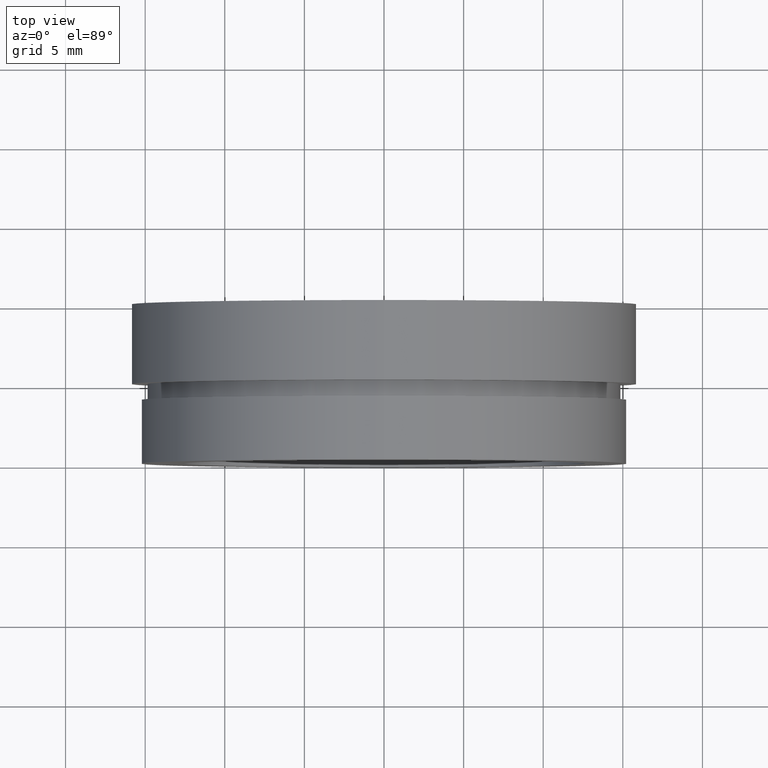
[diagram: clean part render]
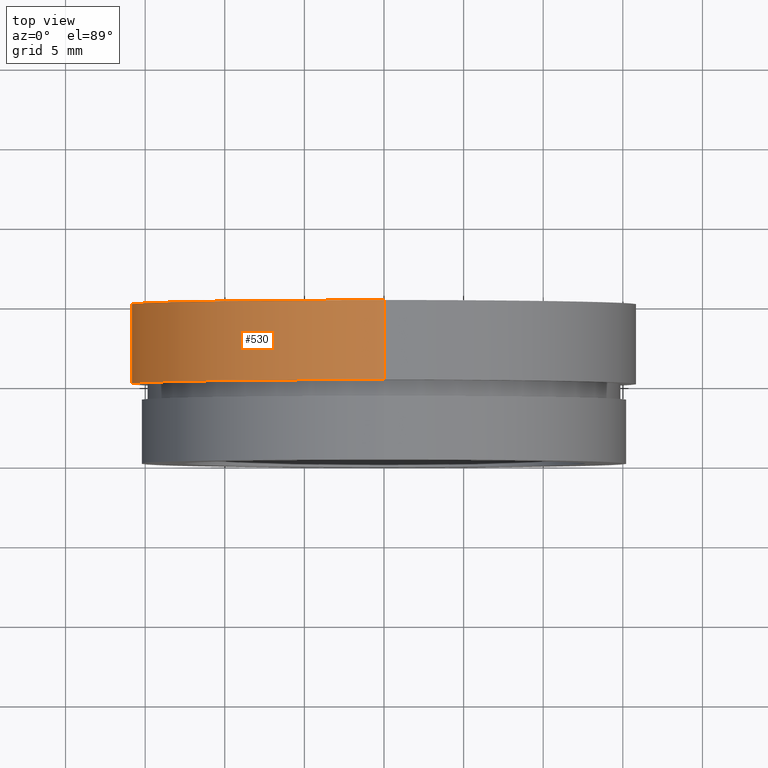
[diagram: same view with one face highlighted and labeled with its STEP entity id]
A machine part, top view. The second image highlights one B-rep face of the part: STEP entity #530.
In plain terms, the highlighted cylindrical surface (partial cylindrical patch) has radius 15.875 mm, axis along (-0, 1, -0).
Its self-contained STEP definition (entity closure, byte-faithful):
#5 = CARTESIAN_POINT ( 'NONE',  ( 0.0000000000000000000, 5.000000000000000900, 15.87500000000000000 ) ) ;
#15 = VERTEX_POINT ( 'NONE', #156 ) ;
#21 = CARTESIAN_POINT ( 'NONE',  ( 0.0000000000000000000, 5.000000000000000900, 0.0000000000000000000 ) ) ;
#25 = CARTESIAN_POINT ( 'NONE',  ( 0.0000000000000000000, 13.74468085106383300, 15.87500000000000000 ) ) ;
#50 = VERTEX_POINT ( 'NONE', #5 ) ;
#81 = ORIENTED_EDGE ( 'NONE', *, *, #583, .F. ) ;
#92 = LINE ( 'NONE', #25, #469 ) ;
#131 = CARTESIAN_POINT ( 'NONE',  ( 0.0000000000000000000, 10.00000000000000000, 15.87500000000000000 ) ) ;
#152 = DIRECTION ( 'NONE',  ( -0.0000000000000000000, 1.000000000000000000, -0.0000000000000000000 ) ) ;
#156 = CARTESIAN_POINT ( 'NONE',  ( 1.944126793646423200E-015, 10.00000000000000000, -15.87500000000000000 ) ) ;
#168 = ORIENTED_EDGE ( 'NONE', *, *, #203, .T. ) ;
#184 = AXIS2_PLACEMENT_3D ( 'NONE', #21, #458, #353 ) ;
#203 = EDGE_CURVE ( 'NONE', #214, #50, #390, .T. ) ;
#214 = VERTEX_POINT ( 'NONE', #310 ) ;
#218 = EDGE_CURVE ( 'NONE', #15, #452, #411, .T. ) ;
#281 = DIRECTION ( 'NONE',  ( -0.0000000000000000000, 1.000000000000000000, -0.0000000000000000000 ) ) ;
#293 = VECTOR ( 'NONE', #374, 1000.000000000000000 ) ;
#310 = CARTESIAN_POINT ( 'NONE',  ( 1.944126793646423200E-015, 5.000000000000000900, -15.87500000000000000 ) ) ;
#339 = EDGE_CURVE ( 'NONE', #50, #452, #92, .T. ) ;
#353 = DIRECTION ( 'NONE',  ( 0.0000000000000000000, 0.0000000000000000000, 1.000000000000000000 ) ) ;
#359 = FACE_OUTER_BOUND ( 'NONE', #395, .T. ) ;
#374 = DIRECTION ( 'NONE',  ( -0.0000000000000000000, 1.000000000000000000, -0.0000000000000000000 ) ) ;
#390 = CIRCLE ( 'NONE', #184, 15.87500000000000000 ) ;
#392 = AXIS2_PLACEMENT_3D ( 'NONE', #614, #532, #434 ) ;
#395 = EDGE_LOOP ( 'NONE', ( #81, #168, #468, #440 ) ) ;
#411 = CIRCLE ( 'NONE', #486, 15.87500000000000000 ) ;
#427 = CARTESIAN_POINT ( 'NONE',  ( 1.944126793646423200E-015, 13.74468085106383300, -15.87500000000000000 ) ) ;
#434 = DIRECTION ( 'NONE',  ( 0.0000000000000000000, 0.0000000000000000000, 1.000000000000000000 ) ) ;
#440 = ORIENTED_EDGE ( 'NONE', *, *, #218, .F. ) ;
#445 = DIRECTION ( 'NONE',  ( 0.0000000000000000000, 0.0000000000000000000, 1.000000000000000000 ) ) ;
#452 = VERTEX_POINT ( 'NONE', #131 ) ;
#458 = DIRECTION ( 'NONE',  ( -0.0000000000000000000, 1.000000000000000000, -0.0000000000000000000 ) ) ;
#468 = ORIENTED_EDGE ( 'NONE', *, *, #339, .T. ) ;
#469 = VECTOR ( 'NONE', #281, 1000.000000000000000 ) ;
#486 = AXIS2_PLACEMENT_3D ( 'NONE', #542, #152, #445 ) ;
#530 = ADVANCED_FACE ( 'NONE', ( #359 ), #597, .T. ) ;
#532 = DIRECTION ( 'NONE',  ( -0.0000000000000000000, 1.000000000000000000, -0.0000000000000000000 ) ) ;
#542 = CARTESIAN_POINT ( 'NONE',  ( 0.0000000000000000000, 10.00000000000000000, 0.0000000000000000000 ) ) ;
#553 = LINE ( 'NONE', #427, #293 ) ;
#583 = EDGE_CURVE ( 'NONE', #214, #15, #553, .T. ) ;
#597 = CYLINDRICAL_SURFACE ( 'NONE', #392, 15.87500000000000000 ) ;
#614 = CARTESIAN_POINT ( 'NONE',  ( 0.0000000000000000000, 13.74468085106383300, 0.0000000000000000000 ) ) ;